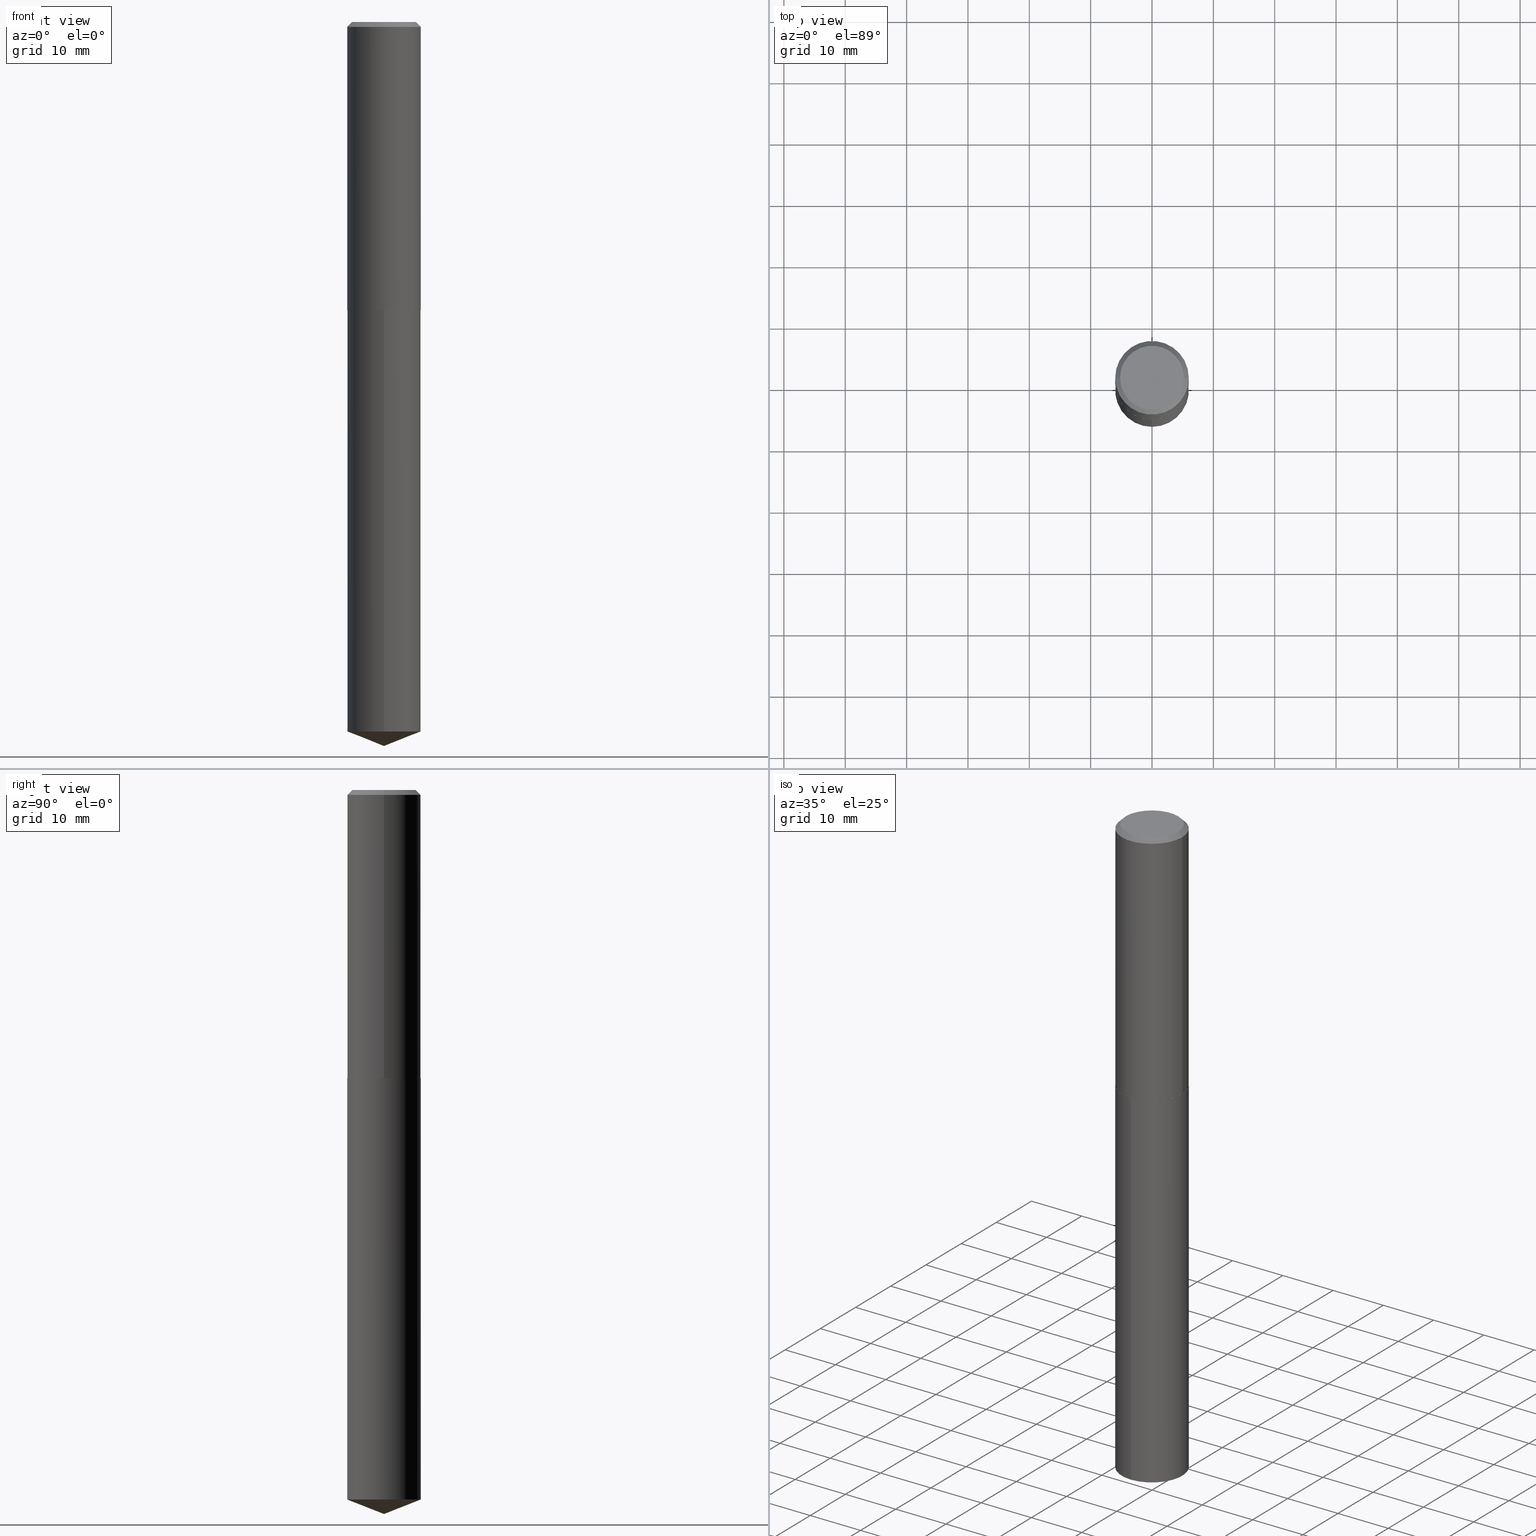
[diagram: canonical four-view strip — front | top / right | iso, engineering-drawing reading convention]
A machine part, canonical four-view strip (front | top / right | iso — engineering-drawing reading convention). The complete STEP part file that produces these views, byte-faithful:
ISO-10303-21;
HEADER;
FILE_DESCRIPTION (( 'STEP AP203' ),
    '1' );
FILE_NAME ('66593.STEP',
    '2024-04-23T12:50:54',
    ( '' ),
    ( '' ),
    'SwSTEP 2.0',
    'SolidWorks 2023',
    '' );
FILE_SCHEMA (( 'CONFIG_CONTROL_DESIGN' ));
ENDSEC;

DATA;
#1 = DIRECTION ( 'NONE',  ( 0.7071067811866923458, -2.468850131083773646E-15, 0.7071067811864025776 ) ) ;
#2 = EDGE_CURVE ( 'NONE', #155, #21, #319, .T. ) ;
#3 = DIRECTION ( 'NONE',  ( 1.000000000000000000, -6.982962677686265922E-15, 0.000000000000000000 ) ) ;
#4 = CALENDAR_DATE ( 2024, 23, 4 ) ;
#5 = DIMENSIONAL_EXPONENTS ( 1.000000000000000000, 0.000000000000000000, 0.000000000000000000, 0.000000000000000000, 0.000000000000000000, 0.000000000000000000, 0.000000000000000000 ) ;
#6 = LINE ( 'NONE', #333, #361 ) ;
#7 = CC_DESIGN_DATE_AND_TIME_ASSIGNMENT ( #19, #136, ( #372 ) ) ;
#8 =( LENGTH_UNIT ( ) NAMED_UNIT ( * ) SI_UNIT ( $, .METRE. ) );
#9 = ORIENTED_EDGE ( 'NONE', *, *, #97, .F. ) ;
#10 = APPROVAL_DATE_TIME ( #360, #190 ) ;
#11 = PERSON_AND_ORGANIZATION ( #110, #188 ) ;
#12 = CIRCLE ( 'NONE', #340, 0.2361999999999999933 ) ;
#13 = CC_DESIGN_PERSON_AND_ORGANIZATION_ASSIGNMENT ( #368, #216, ( #196 ) ) ;
#14 = COORDINATED_UNIVERSAL_TIME_OFFSET ( 5, 0, .BEHIND. ) ;
#15 = DIRECTION ( 'NONE',  ( -6.982962677686265922E-15, -1.000000000000000000, 4.626330217890369336E-15 ) ) ;
#16 = APPROVAL_ROLE ( '' ) ;
#17 = ADVANCED_FACE ( 'NONE', ( #376 ), #286, .T. ) ;
#18 = AXIS2_PLACEMENT_3D ( 'NONE', #247, #134, #3 ) ;
#19 = DATE_AND_TIME ( #277, #294 ) ;
#20 = DIRECTION ( 'NONE',  ( -2.445468806185136597E-29, 3.491481338843145583E-15, 1.000000000000000000 ) ) ;
#21 = VERTEX_POINT ( 'NONE', #138 ) ;
#22 = EDGE_LOOP ( 'NONE', ( #257, #105, #326 ) ) ;
#23 = DIRECTION ( 'NONE',  ( -6.497071151882117470E-15, -0.9304175679820243516, 0.3665012267242979127 ) ) ;
#24 = EDGE_LOOP ( 'NONE', ( #52, #142, #267, #34 ) ) ;
#25 = AXIS2_PLACEMENT_3D ( 'NONE', #278, #206, #245 ) ;
#26 = CC_DESIGN_PERSON_AND_ORGANIZATION_ASSIGNMENT ( #379, #334, ( #372 ) ) ;
#27 = CC_DESIGN_APPROVAL ( #190, ( #196 ) ) ;
#28 = AXIS2_PLACEMENT_3D ( 'NONE', #386, #353, #53 ) ;
#29 = ORIENTED_EDGE ( 'NONE', *, *, #350, .F. ) ;
#30 = CARTESIAN_POINT ( 'NONE',  ( -0.2362000000000001321, 1.678301941865357577E-15, -1.161852468318209457E-29 ) ) ;
#31 = DIRECTION ( 'NONE',  ( -2.445468806185136597E-29, 3.491481338843145583E-15, 1.000000000000000000 ) ) ;
#32 = APPROVAL_PERSON_ORGANIZATION ( #246, #49, #313 ) ;
#33 = DIRECTION ( 'NONE',  ( 2.445391842571961550E-29, -3.491591555117708420E-15, -1.000000000000000000 ) ) ;
#34 = ORIENTED_EDGE ( 'NONE', *, *, #338, .F. ) ;
#35 = APPLICATION_CONTEXT ( 'configuration controlled 3d designs of mechanical parts and assemblies' ) ;
#36 = DIRECTION ( 'NONE',  ( -2.445391842571962110E-29, 3.491591555117708420E-15, 1.000000000000000000 ) ) ;
#37 = ADVANCED_FACE ( 'NONE', ( #80 ), #254, .T. ) ;
#38 =( GEOMETRIC_REPRESENTATION_CONTEXT ( 3 ) GLOBAL_UNCERTAINTY_ASSIGNED_CONTEXT ( ( #250 ) ) GLOBAL_UNIT_ASSIGNED_CONTEXT ( ( #298, #359, #126 ) ) REPRESENTATION_CONTEXT ( 'NONE', 'WORKASPACE' ) );
#39 = ORIENTED_EDGE ( 'NONE', *, *, #150, .T. ) ;
#40 = CARTESIAN_POINT ( 'NONE',  ( 1.678301941865467821E-15, 0.2361999999999840893, -4.552958345659752659 ) ) ;
#41 = CIRCLE ( 'NONE', #275, 0.2362000000000002709 ) ;
#42 = DIRECTION ( 'NONE',  ( -2.445391842571962110E-29, 3.491591555117708420E-15, 1.000000000000000000 ) ) ;
#43 = PERSON_AND_ORGANIZATION ( #110, #188 ) ;
#44 = DIRECTION ( 'NONE',  ( 1.000000000000000000, -6.982962677686269077E-15, 0.000000000000000000 ) ) ;
#45 = MECHANICAL_CONTEXT ( 'NONE', #35, 'mechanical' ) ;
#46 = DIRECTION ( 'NONE',  ( -1.000000000000000000, 6.982962677686265922E-15, -4.876176775795935793E-29 ) ) ;
#47 = LINE ( 'NONE', #178, #390 ) ;
#48 = CARTESIAN_POINT ( 'NONE',  ( 0.2357000000000001594, -8.107568816927663207E-15, -1.850700000000000012 ) ) ;
#49 = APPROVAL ( #222, 'UNSPECIFIED' ) ;
#50 = ORIENTED_EDGE ( 'NONE', *, *, #60, .T. ) ;
#51 = CARTESIAN_POINT ( 'NONE',  ( 7.642090019328607041E-31, -1.091087918388490883E-16, -0.03125000000000022898 ) ) ;
#52 = ORIENTED_EDGE ( 'NONE', *, *, #336, .T. ) ;
#53 = DIRECTION ( 'NONE',  ( -6.982962677686266711E-15, -1.000000000000000000, 3.498627837350013689E-15 ) ) ;
#54 = ADVANCED_FACE ( 'NONE', ( #116 ), #143, .T. ) ;
#55 = CARTESIAN_POINT ( 'NONE',  ( 7.642090019328607041E-31, -1.091087918388490883E-16, -0.03125000000000022898 ) ) ;
#56 = CARTESIAN_POINT ( 'NONE',  ( 4.525829119606832626E-29, -6.461684513797009689E-15, -1.850700000000000012 ) ) ;
#57 = FACE_OUTER_BOUND ( 'NONE', #348, .T. ) ;
#58 = CARTESIAN_POINT ( 'NONE',  ( 0.2049499999999999933, -1.567808741777880040E-15, 4.818985154655325294E-18 ) ) ;
#59 = CIRCLE ( 'NONE', #25, 0.2361999999999999933 ) ;
#60 = EDGE_CURVE ( 'NONE', #107, #347, #114, .T. ) ;
#61 = LENGTH_MEASURE_WITH_UNIT ( LENGTH_MEASURE( 0.02539999999999999897 ), #8 );
#62 = MANIFOLD_SOLID_BREP ( 'Body-Move/Copy2[2]', #77 ) ;
#63 = CYLINDRICAL_SURFACE ( 'NONE', #92, 0.2362000000000001321 ) ;
#64 = AXIS2_PLACEMENT_3D ( 'NONE', #337, #192, #273 ) ;
#65 = DIRECTION ( 'NONE',  ( -0.7071067811866923458, 7.493145998870876386E-15, 0.7071067811864025776 ) ) ;
#66 = ORIENTED_EDGE ( 'NONE', *, *, #308, .F. ) ;
#67 = CARTESIAN_POINT ( 'NONE',  ( 0.000000000000000000, 0.000000000000000000, 0.000000000000000000 ) ) ;
#68 = PERSON_AND_ORGANIZATION ( #110, #188 ) ;
#69 = MANIFOLD_SOLID_BREP ( 'Body-Move/Copy2[1]', #99 ) ;
#70 = CARTESIAN_POINT ( 'NONE',  ( 0.2362000000000002709, -8.109314557597087077E-15, -1.850200000000000067 ) ) ;
#71 = AXIS2_PLACEMENT_3D ( 'NONE', #151, #121, #166 ) ;
#72 = EDGE_CURVE ( 'NONE', #107, #229, #265, .T. ) ;
#73 = APPROVAL_STATUS ( 'not_yet_approved' ) ;
#74 = DIRECTION ( 'NONE',  ( 1.000000000000000000, -6.982962677686266711E-15, 4.876176775795936353E-29 ) ) ;
#75 = AXIS2_PLACEMENT_3D ( 'NONE', #276, #312, #46 ) ;
#76 = APPROVAL_PERSON_ORGANIZATION ( #366, #190, #16 ) ;
#77 = CLOSED_SHELL ( 'NONE', ( #124, #322, #234, #153, #37, #227, #79, #239 ) ) ;
#78 = CARTESIAN_POINT ( 'NONE',  ( -0.2362000000000002709, -4.781636831262230214E-15, -1.850200000000000067 ) ) ;
#79 = ADVANCED_FACE ( 'NONE', ( #290 ), #357, .T. ) ;
#80 = FACE_OUTER_BOUND ( 'NONE', #146, .T. ) ;
#81 = ORIENTED_EDGE ( 'NONE', *, *, #268, .F. ) ;
#82 = DIRECTION ( 'NONE',  ( -2.445468806185136597E-29, 3.491481338843145583E-15, 1.000000000000000000 ) ) ;
#83 = ORIENTED_EDGE ( 'NONE', *, *, #122, .T. ) ;
#84 = EDGE_CURVE ( 'NONE', #232, #174, #85, .T. ) ;
#85 = LINE ( 'NONE', #205, #163 ) ;
#86 = PLANE ( 'NONE',  #75 ) ;
#87 = ORIENTED_EDGE ( 'NONE', *, *, #101, .F. ) ;
#88 = DIRECTION ( 'NONE',  ( -2.445468806185136877E-29, 3.491481338843145188E-15, 1.000000000000000000 ) ) ;
#89 = DIRECTION ( 'NONE',  ( -2.445468806185136597E-29, 3.491481338843145583E-15, 1.000000000000000000 ) ) ;
#90 = CARTESIAN_POINT ( 'NONE',  ( 4.524606385203739825E-29, -6.459938773127588186E-15, -1.850200000000000067 ) ) ;
#91 = ORIENTED_EDGE ( 'NONE', *, *, #297, .F. ) ;
#92 = AXIS2_PLACEMENT_3D ( 'NONE', #67, #272, #96 ) ;
#93 = AXIS2_PLACEMENT_3D ( 'NONE', #349, #261, #235 ) ;
#94 = CC_DESIGN_PERSON_AND_ORGANIZATION_ASSIGNMENT ( #161, #132, ( #362 ) ) ;
#95 = APPLICATION_CONTEXT ( 'configuration controlled 3d designs of mechanical parts and assemblies' ) ;
#96 = DIRECTION ( 'NONE',  ( 1.000000000000000000, -6.982962677686266711E-15, 4.876176775795936353E-29 ) ) ;
#97 = EDGE_CURVE ( 'NONE', #170, #174, #12, .T. ) ;
#98 = PERSON_AND_ORGANIZATION_ROLE ( 'design_owner' ) ;
#99 = CLOSED_SHELL ( 'NONE', ( #17, #301, #54, #385, #135 ) ) ;
#100 = VECTOR ( 'NONE', #300, 39.37007874015748143 ) ;
#101 = EDGE_CURVE ( 'NONE', #287, #174, #248, .T. ) ;
#102 = APPROVAL_STATUS ( 'not_yet_approved' ) ;
#103 = FACE_OUTER_BOUND ( 'NONE', #128, .T. ) ;
#104 = LINE ( 'NONE', #223, #238 ) ;
#105 = ORIENTED_EDGE ( 'NONE', *, *, #215, .T. ) ;
#106 = AXIS2_PLACEMENT_3D ( 'NONE', #51, #262, #149 ) ;
#107 = VERTEX_POINT ( 'NONE', #48 ) ;
#108 = AXIS2_PLACEMENT_3D ( 'NONE', #258, #321, #203 ) ;
#109 = CARTESIAN_POINT ( 'NONE',  ( 1.678301941865468807E-15, 0.2361999999999935818, -1.850700000000000900 ) ) ;
#110 = PERSON ( 'UNSPECIFIED', 'UNSPECIFIED', 'UNSPECIFIED', ('UNSPECIFIED'), ('UNSPECIFIED'), ('UNSPECIFIED') ) ;
#111 = DIRECTION ( 'NONE',  ( 1.000000000000000000, -6.982962677686266711E-15, 0.000000000000000000 ) ) ;
#112 = ORIENTED_EDGE ( 'NONE', *, *, #84, .F. ) ;
#113 = ORIENTED_EDGE ( 'NONE', *, *, #2, .T. ) ;
#114 = LINE ( 'NONE', #346, #307 ) ;
#115 = ORIENTED_EDGE ( 'NONE', *, *, #122, .F. ) ;
#116 = FACE_OUTER_BOUND ( 'NONE', #22, .T. ) ;
#117 = EDGE_CURVE ( 'NONE', #174, #170, #187, .T. ) ;
#118 = AXIS2_PLACEMENT_3D ( 'NONE', #293, #33, #221 ) ;
#119 = DIRECTION ( 'NONE',  ( 1.000000000000000000, -6.982962677686266711E-15, 0.000000000000000000 ) ) ;
#120 = FACE_OUTER_BOUND ( 'NONE', #213, .T. ) ;
#121 = DIRECTION ( 'NONE',  ( -2.438088387897960049E-29, 3.491481338843145188E-15, 1.000000000000000000 ) ) ;
#122 = EDGE_CURVE ( 'NONE', #249, #232, #241, .T. ) ;
#123 = VECTOR ( 'NONE', #159, 39.37007874015748143 ) ;
#124 = ADVANCED_FACE ( 'NONE', ( #317 ), #311, .T. ) ;
#125 = DESIGN_CONTEXT ( 'detailed design', #95, 'design' ) ;
#126 =( NAMED_UNIT ( * ) SI_UNIT ( $, .STERADIAN. ) SOLID_ANGLE_UNIT ( ) );
#127 = CALENDAR_DATE ( 2024, 23, 4 ) ;
#128 = EDGE_LOOP ( 'NONE', ( #169, #296, #81, #284 ) ) ;
#129 = AXIS2_PLACEMENT_3D ( 'NONE', #198, #231, #176 ) ;
#130 = LOCAL_TIME ( 8, 50, 54.00000000000000000, #14 ) ;
#131 = CARTESIAN_POINT ( 'NONE',  ( 4.525829119606832626E-29, -6.461684513797009689E-15, -1.850700000000000012 ) ) ;
#132 = PERSON_AND_ORGANIZATION_ROLE ( 'design_supplier' ) ;
#133 = CONICAL_SURFACE ( 'NONE', #147, 99.94676754583970535, 1.195550537616118625 ) ;
#134 = DIRECTION ( 'NONE',  ( -2.445468806185136597E-29, 3.491481338843145583E-15, 1.000000000000000000 ) ) ;
#135 = ADVANCED_FACE ( 'NONE', ( #57 ), #179, .F. ) ;
#136 = DATE_TIME_ROLE ( 'creation_date' ) ;
#137 = DIRECTION ( 'NONE',  ( 1.000000000000000000, -6.982962677686269077E-15, 0.000000000000000000 ) ) ;
#138 = CARTESIAN_POINT ( 'NONE',  ( -1.649375784469450574E-15, -0.2362000000000064603, -1.850699999999999124 ) ) ;
#139 = EDGE_LOOP ( 'NONE', ( #141, #83 ) ) ;
#140 = DIRECTION ( 'NONE',  ( -2.445468806185136597E-29, 3.491481338843145583E-15, 1.000000000000000000 ) ) ;
#141 = ORIENTED_EDGE ( 'NONE', *, *, #219, .T. ) ;
#142 = ORIENTED_EDGE ( 'NONE', *, *, #350, .T. ) ;
#143 = CONICAL_SURFACE ( 'NONE', #28, 99.94676754583970535, 1.195550537616118625 ) ;
#144 = ORIENTED_EDGE ( 'NONE', *, *, #185, .F. ) ;
#145 = ADVANCED_BREP_SHAPE_REPRESENTATION ( '66593', ( #69, #62, #64 ), #38 ) ;
#146 = EDGE_LOOP ( 'NONE', ( #66, #237, #50, #199 ) ) ;
#147 = AXIS2_PLACEMENT_3D ( 'NONE', #184, #42, #182 ) ;
#148 = CARTESIAN_POINT ( 'NONE',  ( 1.136129050058933534E-28, -1.622193436507687341E-14, -4.645999999999999908 ) ) ;
#149 = DIRECTION ( 'NONE',  ( -1.000000000000000000, 6.982962677686266711E-15, 0.000000000000000000 ) ) ;
#150 = EDGE_CURVE ( 'NONE', #347, #170, #47, .T. ) ;
#151 = CARTESIAN_POINT ( 'NONE',  ( 4.525829119606832626E-29, -6.461684513797009689E-15, -1.850700000000000012 ) ) ;
#152 = ORIENTED_EDGE ( 'NONE', *, *, #297, .T. ) ;
#153 = ADVANCED_FACE ( 'NONE', ( #120 ), #226, .F. ) ;
#154 = DIRECTION ( 'NONE',  ( -6.982962677686265922E-15, -1.000000000000000000, 3.469747663417777397E-15 ) ) ;
#155 = VERTEX_POINT ( 'NONE', #109 ) ;
#156 = PERSON_AND_ORGANIZATION_ROLE ( 'creator' ) ;
#157 = AXIS2_PLACEMENT_3D ( 'NONE', #373, #31, #74 ) ;
#158 = CC_DESIGN_APPROVAL ( #49, ( #362 ) ) ;
#159 = DIRECTION ( 'NONE',  ( -2.445391842571962110E-29, 3.491591555117708420E-15, 1.000000000000000000 ) ) ;
#160 = EDGE_CURVE ( 'NONE', #363, #289, #59, .T. ) ;
#161 = PERSON_AND_ORGANIZATION ( #110, #188 ) ;
#162 = CARTESIAN_POINT ( 'NONE',  ( -0.2357000000000001594, -4.784286058436341415E-15, -1.850700000000000012 ) ) ;
#163 = VECTOR ( 'NONE', #323, 39.37007874015748143 ) ;
#164 = CC_DESIGN_APPROVAL ( #180, ( #372 ) ) ;
#165 = COORDINATED_UNIVERSAL_TIME_OFFSET ( 5, 0, .BEHIND. ) ;
#166 = DIRECTION ( 'NONE',  ( 1.000000000000000000, -6.982962677686265922E-15, 4.876176775795935793E-29 ) ) ;
#167 = DIRECTION ( 'NONE',  ( 1.000000000000000000, -6.982962677686269077E-15, 0.000000000000000000 ) ) ;
#168 = DIRECTION ( 'NONE',  ( -2.445468806185136597E-29, 3.491481338843145583E-15, 1.000000000000000000 ) ) ;
#169 = ORIENTED_EDGE ( 'NONE', *, *, #72, .T. ) ;
#170 = VERTEX_POINT ( 'NONE', #263 ) ;
#171 = DATE_AND_TIME ( #374, #299 ) ;
#172 = ORIENTED_EDGE ( 'NONE', *, *, #84, .T. ) ;
#173 = AXIS2_PLACEMENT_3D ( 'NONE', #236, #140, #291 ) ;
#174 = VERTEX_POINT ( 'NONE', #197 ) ;
#175 = EDGE_CURVE ( 'NONE', #287, #347, #370, .T. ) ;
#176 = DIRECTION ( 'NONE',  ( -1.000000000000000000, 6.982962677686266711E-15, 0.000000000000000000 ) ) ;
#177 = CARTESIAN_POINT ( 'NONE',  ( 4.525829119606832626E-29, -6.461684513797009689E-15, -1.850700000000000012 ) ) ;
#178 = CARTESIAN_POINT ( 'NONE',  ( 0.2362000000000001321, -1.649375784469497117E-15, 1.151752954443000789E-29 ) ) ;
#179 = PLANE ( 'NONE',  #118 ) ;
#180 = APPROVAL ( #73, 'UNSPECIFIED' ) ;
#181 = DIRECTION ( 'NONE',  ( -2.445468806185136597E-29, 3.491481338843145583E-15, 1.000000000000000000 ) ) ;
#182 = DIRECTION ( 'NONE',  ( -6.982962677686266711E-15, -1.000000000000000000, 3.498627837350013689E-15 ) ) ;
#183 = DATE_AND_TIME ( #4, #243 ) ;
#184 = CARTESIAN_POINT ( 'NONE',  ( -8.491383645544870968E-28, 1.212425040656355496E-13, 34.72407874015748064 ) ) ;
#185 = EDGE_CURVE ( 'NONE', #229, #107, #292, .T. ) ;
#186 = CARTESIAN_POINT ( 'NONE',  ( 1.678301941865401754E-15, 0.2361999999999935540, -1.850700000000000900 ) ) ;
#187 = CIRCLE ( 'NONE', #352, 0.2361999999999999933 ) ;
#188 = ORGANIZATION ( 'UNSPECIFIED', 'UNSPECIFIED', '' ) ;
#189 = DATE_AND_TIME ( #127, #266 ) ;
#190 = APPROVAL ( #102, 'UNSPECIFIED' ) ;
#191 = APPROVAL_DATE_TIME ( #183, #49 ) ;
#192 = DIRECTION ( 'NONE',  ( 0.000000000000000000, 0.000000000000000000, 1.000000000000000000 ) ) ;
#193 = APPLICATION_PROTOCOL_DEFINITION ( 'international standard', 'config_control_design', 1994, #95 ) ;
#194 = FACE_OUTER_BOUND ( 'NONE', #139, .T. ) ;
#195 = AXIS2_PLACEMENT_3D ( 'NONE', #131, #367, #154 ) ;
#196 = SECURITY_CLASSIFICATION ( '', '', #304 ) ;
#197 = CARTESIAN_POINT ( 'NONE',  ( -0.2361999999999999933, -1.606221840617860474E-15, -0.03125000000000022898 ) ) ;
#198 = CARTESIAN_POINT ( 'NONE',  ( 7.642090019328607041E-31, -1.091087918388490883E-16, -0.03125000000000022898 ) ) ;
#199 = ORIENTED_EDGE ( 'NONE', *, *, #175, .F. ) ;
#200 = DIRECTION ( 'NONE',  ( 1.000000000000000000, -6.982962677686266711E-15, 4.876118559169178830E-29 ) ) ;
#201 = VERTEX_POINT ( 'NONE', #148 ) ;
#202 = APPROVAL_DATE_TIME ( #171, #180 ) ;
#203 = DIRECTION ( 'NONE',  ( -6.982962677686265922E-15, -1.000000000000000000, 3.469747663417777397E-15 ) ) ;
#204 = CONICAL_SURFACE ( 'NONE', #331, 0.2362000000000002709, 0.7853981633976532262 ) ;
#205 = CARTESIAN_POINT ( 'NONE',  ( -0.2361999999999999933, 1.540266992630647030E-15, -0.03125000000000022898 ) ) ;
#206 = DIRECTION ( 'NONE',  ( -2.445391842571962110E-29, 3.491591555117708420E-15, 1.000000000000000000 ) ) ;
#207 = CARTESIAN_POINT ( 'NONE',  ( 7.642090019328607041E-31, -1.091087918388490883E-16, -0.03125000000000022898 ) ) ;
#208 = CIRCLE ( 'NONE', #173, 0.2049499999999999933 ) ;
#209 = ORIENTED_EDGE ( 'NONE', *, *, #268, .T. ) ;
#210 = CYLINDRICAL_SURFACE ( 'NONE', #195, 0.2361999999999999933 ) ;
#211 = VECTOR ( 'NONE', #23, 39.37007874015748854 ) ;
#212 = CARTESIAN_POINT ( 'NONE',  ( 1.113390963460519513E-28, -1.589686693324894697E-14, -4.552958345659751771 ) ) ;
#213 = EDGE_LOOP ( 'NONE', ( #256, #144 ) ) ;
#214 = LINE ( 'NONE', #364, #100 ) ;
#215 = EDGE_CURVE ( 'NONE', #201, #289, #282, .T. ) ;
#216 = PERSON_AND_ORGANIZATION_ROLE ( 'classification_officer' ) ;
#217 = AXIS2_PLACEMENT_3D ( 'NONE', #228, #82, #200 ) ;
#218 = APPROVAL_PERSON_ORGANIZATION ( #68, #180, #230 ) ;
#219 = EDGE_CURVE ( 'NONE', #232, #249, #208, .T. ) ;
#220 = COORDINATED_UNIVERSAL_TIME_OFFSET ( 5, 0, .BEHIND. ) ;
#221 = DIRECTION ( 'NONE',  ( 6.982962677686265922E-15, 1.000000000000000000, -3.491591555117708420E-15 ) ) ;
#222 = APPROVAL_STATUS ( 'not_yet_approved' ) ;
#223 = CARTESIAN_POINT ( 'NONE',  ( 1.136157787170811627E-28, -1.622152641055820802E-14, -4.645999999999999908 ) ) ;
#224 = ORIENTED_EDGE ( 'NONE', *, *, #175, .T. ) ;
#225 = COORDINATED_UNIVERSAL_TIME_OFFSET ( 5, 0, .BEHIND. ) ;
#226 = PLANE ( 'NONE',  #71 ) ;
#227 = ADVANCED_FACE ( 'NONE', ( #324 ), #356, .T. ) ;
#228 = CARTESIAN_POINT ( 'NONE',  ( -1.178467787315321149E-46, 1.682539673960460649E-32, 4.818985154644839761E-18 ) ) ;
#229 = VERTEX_POINT ( 'NONE', #162 ) ;
#230 = APPROVAL_ROLE ( '' ) ;
#231 = DIRECTION ( 'NONE',  ( 2.445468806185136597E-29, -3.491481338843145583E-15, -1.000000000000000000 ) ) ;
#232 = VERTEX_POINT ( 'NONE', #251 ) ;
#233 = EDGE_LOOP ( 'NONE', ( #91, #281, #172, #288 ) ) ;
#234 = ADVANCED_FACE ( 'NONE', ( #103 ), #204, .T. ) ;
#235 = DIRECTION ( 'NONE',  ( 1.000000000000000000, -6.982962677686269077E-15, 0.000000000000000000 ) ) ;
#236 = CARTESIAN_POINT ( 'NONE',  ( -1.178467787315321149E-46, 1.682539673960460649E-32, 4.818985154644839761E-18 ) ) ;
#237 = ORIENTED_EDGE ( 'NONE', *, *, #185, .T. ) ;
#238 = VECTOR ( 'NONE', #342, 39.37007874015748143 ) ;
#239 = ADVANCED_FACE ( 'NONE', ( #194 ), #86, .F. ) ;
#240 = FACE_OUTER_BOUND ( 'NONE', #318, .T. ) ;
#241 = CIRCLE ( 'NONE', #217, 0.2049499999999999933 ) ;
#242 = EDGE_LOOP ( 'NONE', ( #387, #302, #377 ) ) ;
#243 = LOCAL_TIME ( 8, 50, 54.00000000000000000, #225 ) ;
#244 = CIRCLE ( 'NONE', #378, 0.2361999999999999933 ) ;
#245 = DIRECTION ( 'NONE',  ( -6.982962677686265922E-15, -1.000000000000000000, 4.626330217890369336E-15 ) ) ;
#246 = PERSON_AND_ORGANIZATION ( #110, #188 ) ;
#247 = CARTESIAN_POINT ( 'NONE',  ( 4.525829119606832626E-29, -6.461684513797009689E-15, -1.850700000000000012 ) ) ;
#248 = LINE ( 'NONE', #30, #327 ) ;
#249 = VERTEX_POINT ( 'NONE', #58 ) ;
#250 = UNCERTAINTY_MEASURE_WITH_UNIT (LENGTH_MEASURE( 1.000000000000000082E-05 ), #298, 'distance_accuracy_value', 'NONE');
#251 = CARTESIAN_POINT ( 'NONE',  ( -0.2049499999999999933, 1.485712596711223663E-15, 4.818985154634640807E-18 ) ) ;
#252 = CIRCLE ( 'NONE', #285, 0.2361999999999999933 ) ;
#253 = DIRECTION ( 'NONE',  ( 1.000000000000000000, -6.982962677686265922E-15, 0.000000000000000000 ) ) ;
#254 = CONICAL_SURFACE ( 'NONE', #93, 0.2362000000000002709, 0.7853981633976532262 ) ;
#255 = EDGE_LOOP ( 'NONE', ( #87, #224, #39, #351 ) ) ;
#256 = ORIENTED_EDGE ( 'NONE', *, *, #72, .F. ) ;
#257 = ORIENTED_EDGE ( 'NONE', *, *, #280, .F. ) ;
#258 = CARTESIAN_POINT ( 'NONE',  ( 4.525829119606832626E-29, -6.461684513797009689E-15, -1.850700000000000012 ) ) ;
#259 = EDGE_CURVE ( 'NONE', #21, #155, #244, .T. ) ;
#260 = AXIS2_PLACEMENT_3D ( 'NONE', #354, #283, #253 ) ;
#261 = DIRECTION ( 'NONE',  ( -2.445468806185136597E-29, 3.491481338843145583E-15, 1.000000000000000000 ) ) ;
#262 = DIRECTION ( 'NONE',  ( 2.445468806185136597E-29, -3.491481338843145583E-15, -1.000000000000000000 ) ) ;
#263 = CARTESIAN_POINT ( 'NONE',  ( 0.2361999999999999933, -1.758484576308345231E-15, -0.03125000000000022898 ) ) ;
#264 = CC_DESIGN_DATE_AND_TIME_ASSIGNMENT ( #189, #371, ( #196 ) ) ;
#265 = CIRCLE ( 'NONE', #260, 0.2357000000000001594 ) ;
#266 = LOCAL_TIME ( 8, 50, 54.00000000000000000, #271 ) ;
#267 = ORIENTED_EDGE ( 'NONE', *, *, #259, .F. ) ;
#268 = EDGE_CURVE ( 'NONE', #347, #287, #41, .T. ) ;
#269 = ORIENTED_EDGE ( 'NONE', *, *, #259, .T. ) ;
#270 = SHAPE_DEFINITION_REPRESENTATION ( #383, #145 ) ;
#271 = COORDINATED_UNIVERSAL_TIME_OFFSET ( 5, 0, .BEHIND. ) ;
#272 = DIRECTION ( 'NONE',  ( -2.445468806185136597E-29, 3.491481338843145583E-15, 1.000000000000000000 ) ) ;
#273 = DIRECTION ( 'NONE',  ( 1.000000000000000000, 0.000000000000000000, 0.000000000000000000 ) ) ;
#274 = CC_DESIGN_PERSON_AND_ORGANIZATION_ASSIGNMENT ( #43, #156, ( #362 ) ) ;
#275 = AXIS2_PLACEMENT_3D ( 'NONE', #90, #20, #137 ) ;
#276 = CARTESIAN_POINT ( 'NONE',  ( -5.892338936576605744E-47, 8.412698369802303245E-33, 2.409492577322419881E-18 ) ) ;
#277 = CALENDAR_DATE ( 2024, 23, 4 ) ;
#278 = CARTESIAN_POINT ( 'NONE',  ( 1.113390963460519513E-28, -1.589686693324894697E-14, -4.552958345659751771 ) ) ;
#279 = ORIENTED_EDGE ( 'NONE', *, *, #150, .F. ) ;
#280 = EDGE_CURVE ( 'NONE', #201, #363, #104, .T. ) ;
#281 = ORIENTED_EDGE ( 'NONE', *, *, #219, .F. ) ;
#282 = LINE ( 'NONE', #345, #211 ) ;
#283 = DIRECTION ( 'NONE',  ( -2.445468806185136597E-29, 3.491481338843145583E-15, 1.000000000000000000 ) ) ;
#284 = ORIENTED_EDGE ( 'NONE', *, *, #60, .F. ) ;
#285 = AXIS2_PLACEMENT_3D ( 'NONE', #212, #305, #15 ) ;
#286 = CYLINDRICAL_SURFACE ( 'NONE', #369, 0.2361999999999999933 ) ;
#287 = VERTEX_POINT ( 'NONE', #78 ) ;
#288 = ORIENTED_EDGE ( 'NONE', *, *, #117, .T. ) ;
#289 = VERTEX_POINT ( 'NONE', #314 ) ;
#290 = FACE_OUTER_BOUND ( 'NONE', #233, .T. ) ;
#291 = DIRECTION ( 'NONE',  ( 1.000000000000000000, -6.982962677686266711E-15, 4.876118559169178830E-29 ) ) ;
#292 = CIRCLE ( 'NONE', #18, 0.2357000000000001594 ) ;
#293 = CARTESIAN_POINT ( 'NONE',  ( 4.525829119606832626E-29, -6.461684513797009689E-15, -1.850700000000000012 ) ) ;
#294 = LOCAL_TIME ( 8, 50, 54.00000000000000000, #165 ) ;
#295 = DIRECTION ( 'NONE',  ( -2.445391842571962110E-29, 3.491591555117708420E-15, 1.000000000000000000 ) ) ;
#296 = ORIENTED_EDGE ( 'NONE', *, *, #308, .T. ) ;
#297 = EDGE_CURVE ( 'NONE', #249, #170, #214, .T. ) ;
#298 =( CONVERSION_BASED_UNIT ( 'INCH', #61 ) LENGTH_UNIT ( ) NAMED_UNIT ( #5 ) );
#299 = LOCAL_TIME ( 8, 50, 54.00000000000000000, #220 ) ;
#300 = DIRECTION ( 'NONE',  ( 0.7071067811865450192, -7.319954787623246579E-15, -0.7071067811865500152 ) ) ;
#301 = ADVANCED_FACE ( 'NONE', ( #329 ), #133, .T. ) ;
#302 = ORIENTED_EDGE ( 'NONE', *, *, #280, .T. ) ;
#303 = LINE ( 'NONE', #186, #123 ) ;
#304 = SECURITY_CLASSIFICATION_LEVEL ( 'unclassified' ) ;
#305 = DIRECTION ( 'NONE',  ( -2.445391842571962110E-29, 3.491591555117708420E-15, 1.000000000000000000 ) ) ;
#306 = VECTOR ( 'NONE', #36, 39.37007874015748143 ) ;
#307 = VECTOR ( 'NONE', #1, 39.37007874015748854 ) ;
#308 = EDGE_CURVE ( 'NONE', #229, #287, #6, .T. ) ;
#309 = CALENDAR_DATE ( 2024, 23, 4 ) ;
#310 = APPLICATION_PROTOCOL_DEFINITION ( 'international standard', 'config_control_design', 1994, #35 ) ;
#311 = CONICAL_SURFACE ( 'NONE', #106, 0.2361999999999999933, 0.7853981633974447263 ) ;
#312 = DIRECTION ( 'NONE',  ( 2.438088387897960049E-29, -3.491481338843145188E-15, -1.000000000000000000 ) ) ;
#313 = APPROVAL_ROLE ( '' ) ;
#314 = CARTESIAN_POINT ( 'NONE',  ( -1.649375784469384507E-15, -0.2362000000000158972, -4.552958345659750883 ) ) ;
#315 = ORIENTED_EDGE ( 'NONE', *, *, #2, .F. ) ;
#316 = EDGE_LOOP ( 'NONE', ( #115, #152, #382, #112 ) ) ;
#317 = FACE_OUTER_BOUND ( 'NONE', #316, .T. ) ;
#318 = EDGE_LOOP ( 'NONE', ( #29, #389, #332, #315 ) ) ;
#319 = CIRCLE ( 'NONE', #108, 0.2361999999999999933 ) ;
#320 = AXIS2_PLACEMENT_3D ( 'NONE', #339, #181, #167 ) ;
#321 = DIRECTION ( 'NONE',  ( -2.445391842571962110E-29, 3.491591555117708420E-15, 1.000000000000000000 ) ) ;
#322 = ADVANCED_FACE ( 'NONE', ( #365 ), #63, .T. ) ;
#323 = DIRECTION ( 'NONE',  ( -0.7071067811865450192, 2.468850131082230634E-15, -0.7071067811865500152 ) ) ;
#324 = FACE_OUTER_BOUND ( 'NONE', #255, .T. ) ;
#325 = DIRECTION ( 'NONE',  ( -2.445468806185136597E-29, 3.491481338843145583E-15, 1.000000000000000000 ) ) ;
#326 = ORIENTED_EDGE ( 'NONE', *, *, #160, .F. ) ;
#327 = VECTOR ( 'NONE', #88, 39.37007874015748143 ) ;
#328 = PRODUCT_RELATED_PRODUCT_CATEGORY ( 'detail', '', ( #344 ) ) ;
#329 = FACE_OUTER_BOUND ( 'NONE', #242, .T. ) ;
#330 = CC_DESIGN_PERSON_AND_ORGANIZATION_ASSIGNMENT ( #11, #98, ( #344 ) ) ;
#331 = AXIS2_PLACEMENT_3D ( 'NONE', #380, #89, #44 ) ;
#332 = ORIENTED_EDGE ( 'NONE', *, *, #338, .T. ) ;
#333 = CARTESIAN_POINT ( 'NONE',  ( -0.2362000000000002709, -4.781636831262230214E-15, -1.850200000000000067 ) ) ;
#334 = PERSON_AND_ORGANIZATION_ROLE ( 'creator' ) ;
#335 = CARTESIAN_POINT ( 'NONE',  ( -1.649375784469450574E-15, -0.2362000000000064603, -1.850699999999999124 ) ) ;
#336 = EDGE_CURVE ( 'NONE', #289, #363, #252, .T. ) ;
#337 = CARTESIAN_POINT ( 'NONE',  ( 0.000000000000000000, 0.000000000000000000, 0.000000000000000000 ) ) ;
#338 = EDGE_CURVE ( 'NONE', #289, #21, #358, .T. ) ;
#339 = CARTESIAN_POINT ( 'NONE',  ( 4.524606385203739825E-29, -6.459938773127588186E-15, -1.850200000000000067 ) ) ;
#340 = AXIS2_PLACEMENT_3D ( 'NONE', #55, #325, #119 ) ;
#341 = CC_DESIGN_SECURITY_CLASSIFICATION ( #196, ( #362 ) ) ;
#342 = DIRECTION ( 'NONE',  ( 6.611014441532064222E-15, 0.9304175679820269051, 0.3665012267242913624 ) ) ;
#343 = EDGE_LOOP ( 'NONE', ( #209, #384, #9, #279 ) ) ;
#344 = PRODUCT ( '66593', '66593', '', ( #45 ) ) ;
#345 = CARTESIAN_POINT ( 'NONE',  ( 1.136129050058933534E-28, -1.622193436507687341E-14, -4.645999999999999908 ) ) ;
#346 = CARTESIAN_POINT ( 'NONE',  ( 0.2362000000000002709, -8.109314557597087077E-15, -1.850200000000000067 ) ) ;
#347 = VERTEX_POINT ( 'NONE', #70 ) ;
#348 = EDGE_LOOP ( 'NONE', ( #269, #113 ) ) ;
#349 = CARTESIAN_POINT ( 'NONE',  ( 4.524606385203739825E-29, -6.459938773127588186E-15, -1.850200000000000067 ) ) ;
#350 = EDGE_CURVE ( 'NONE', #363, #155, #303, .T. ) ;
#351 = ORIENTED_EDGE ( 'NONE', *, *, #117, .F. ) ;
#352 = AXIS2_PLACEMENT_3D ( 'NONE', #207, #168, #111 ) ;
#353 = DIRECTION ( 'NONE',  ( -2.445391842571962110E-29, 3.491591555117708420E-15, 1.000000000000000000 ) ) ;
#354 = CARTESIAN_POINT ( 'NONE',  ( 4.525829119606832626E-29, -6.461684513797009689E-15, -1.850700000000000012 ) ) ;
#355 = DIRECTION ( 'NONE',  ( -2.445468806185136877E-29, 3.491481338843145188E-15, 1.000000000000000000 ) ) ;
#356 = CYLINDRICAL_SURFACE ( 'NONE', #157, 0.2362000000000001321 ) ;
#357 = CONICAL_SURFACE ( 'NONE', #129, 0.2361999999999999933, 0.7853981633974447263 ) ;
#358 = LINE ( 'NONE', #335, #306 ) ;
#359 =( NAMED_UNIT ( * ) PLANE_ANGLE_UNIT ( ) SI_UNIT ( $, .RADIAN. ) );
#360 = DATE_AND_TIME ( #309, #130 ) ;
#361 = VECTOR ( 'NONE', #65, 39.37007874015748854 ) ;
#362 = PRODUCT_DEFINITION_FORMATION_WITH_SPECIFIED_SOURCE ( 'ANY', '', #344, .NOT_KNOWN. ) ;
#363 = VERTEX_POINT ( 'NONE', #40 ) ;
#364 = CARTESIAN_POINT ( 'NONE',  ( 0.2361999999999999933, -1.729558418912484771E-15, -0.03125000000000022898 ) ) ;
#365 = FACE_OUTER_BOUND ( 'NONE', #343, .T. ) ;
#366 = PERSON_AND_ORGANIZATION ( #110, #188 ) ;
#367 = DIRECTION ( 'NONE',  ( -2.445391842571962110E-29, 3.491591555117708420E-15, 1.000000000000000000 ) ) ;
#368 = PERSON_AND_ORGANIZATION ( #110, #188 ) ;
#369 = AXIS2_PLACEMENT_3D ( 'NONE', #177, #381, #388 ) ;
#370 = CIRCLE ( 'NONE', #320, 0.2362000000000002709 ) ;
#371 = DATE_TIME_ROLE ( 'classification_date' ) ;
#372 = PRODUCT_DEFINITION ( 'UNKNOWN', '', #362, #125 ) ;
#373 = CARTESIAN_POINT ( 'NONE',  ( 0.000000000000000000, 0.000000000000000000, 0.000000000000000000 ) ) ;
#374 = CALENDAR_DATE ( 2024, 23, 4 ) ;
#375 = DIRECTION ( 'NONE',  ( -6.982962677686265922E-15, -1.000000000000000000, 3.469747663417777397E-15 ) ) ;
#376 = FACE_OUTER_BOUND ( 'NONE', #24, .T. ) ;
#377 = ORIENTED_EDGE ( 'NONE', *, *, #336, .F. ) ;
#378 = AXIS2_PLACEMENT_3D ( 'NONE', #56, #295, #375 ) ;
#379 = PERSON_AND_ORGANIZATION ( #110, #188 ) ;
#380 = CARTESIAN_POINT ( 'NONE',  ( 4.524606385203739825E-29, -6.459938773127588186E-15, -1.850200000000000067 ) ) ;
#381 = DIRECTION ( 'NONE',  ( -2.445391842571962110E-29, 3.491591555117708420E-15, 1.000000000000000000 ) ) ;
#382 = ORIENTED_EDGE ( 'NONE', *, *, #97, .T. ) ;
#383 = PRODUCT_DEFINITION_SHAPE ( 'NONE', 'NONE',  #372 ) ;
#384 = ORIENTED_EDGE ( 'NONE', *, *, #101, .T. ) ;
#385 = ADVANCED_FACE ( 'NONE', ( #240 ), #210, .T. ) ;
#386 = CARTESIAN_POINT ( 'NONE',  ( -8.491383645544870968E-28, 1.212425040656355496E-13, 34.72407874015748064 ) ) ;
#387 = ORIENTED_EDGE ( 'NONE', *, *, #215, .F. ) ;
#388 = DIRECTION ( 'NONE',  ( -6.982962677686265922E-15, -1.000000000000000000, 3.469747663417777397E-15 ) ) ;
#389 = ORIENTED_EDGE ( 'NONE', *, *, #160, .T. ) ;
#390 = VECTOR ( 'NONE', #355, 39.37007874015748143 ) ;
ENDSEC;
END-ISO-10303-21;
